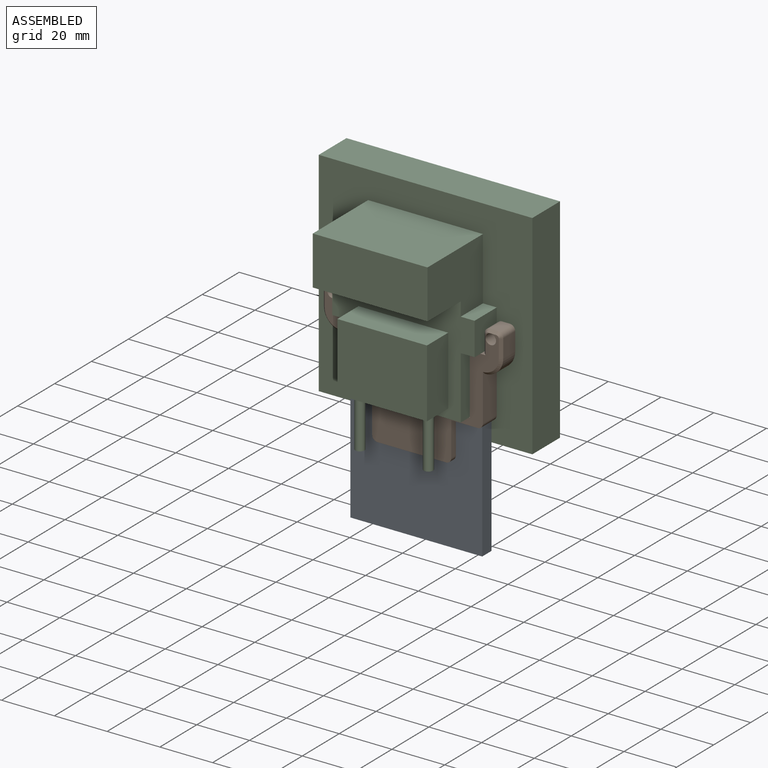
[diagram: assembled view]
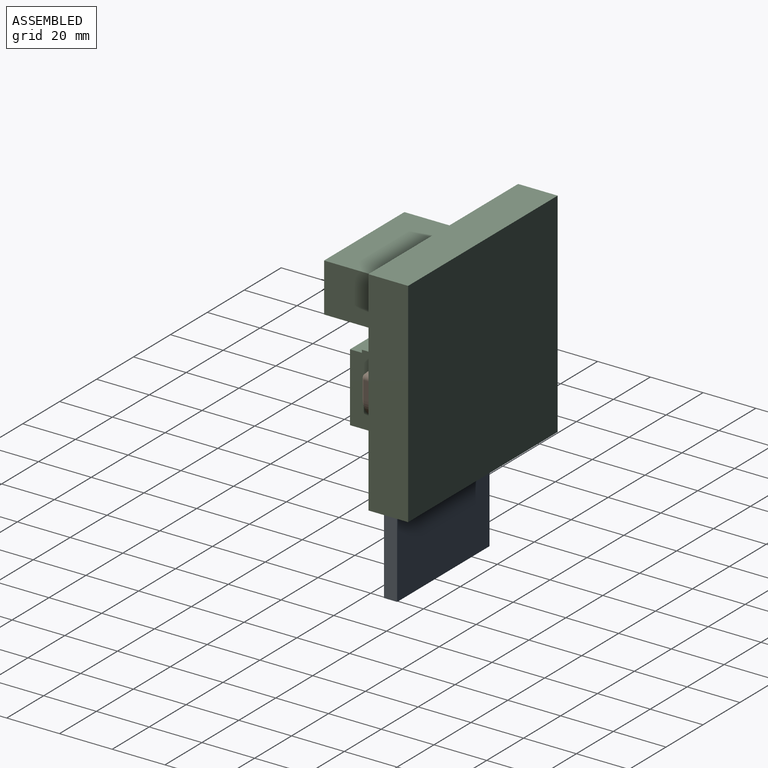
[diagram: assembled view, second angle]
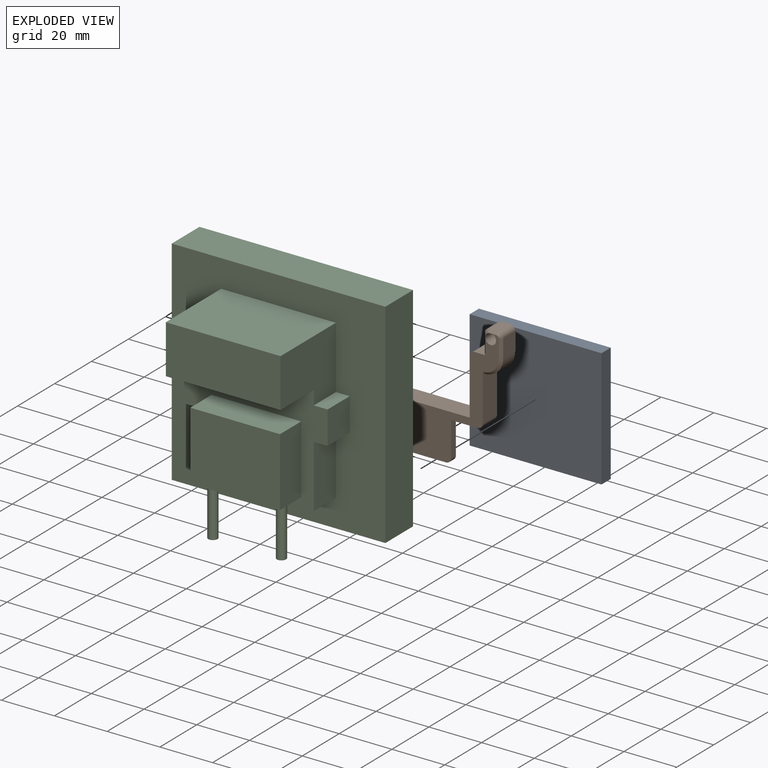
[diagram: exploded view]
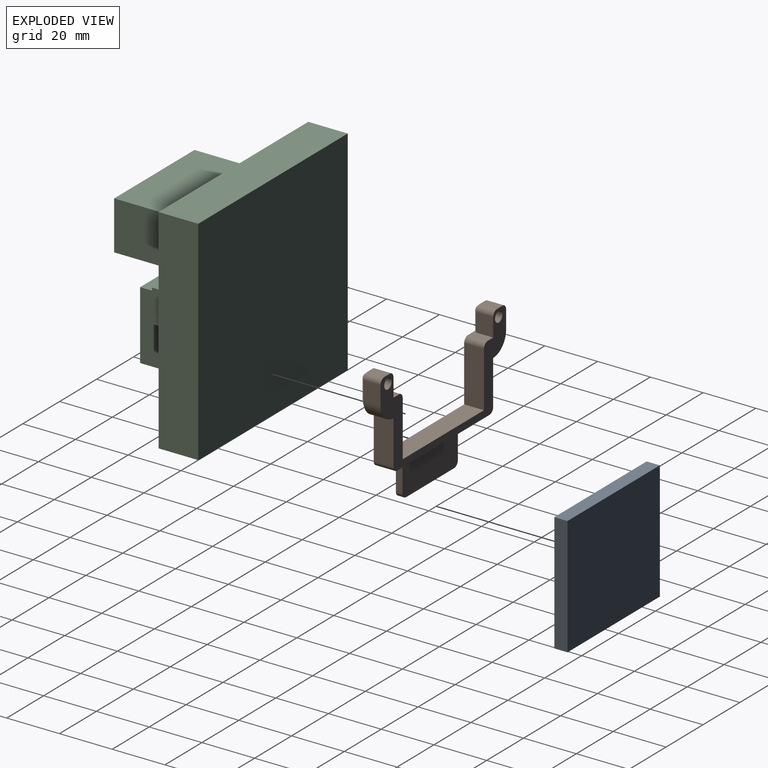
[diagram: exploded view, second angle]
ASSEMBLY  parts=3 mates=2
PART A: 6 faces, bbox 50x5x45 mm
  f0: plane 45x5mm, normal (-1,0,0), area 225mm2, adj f1,f3,f4,f5
  f1: plane 50x5mm, normal (0,0,-1), area 250mm2, adj f0,f2,f4,f5
  f2: plane 45x5mm, normal (1,0,0), area 225mm2, adj f1,f3,f4,f5
  f3: plane 50x5mm, normal (0,0,1), area 250mm2, adj f0,f2,f4,f5
  f4: plane 50x45mm, normal (0,-1,0), area 2250mm2, adj f0,f1,f2,f3
  f5: plane 50x45mm, normal (0,1,0), area 2250mm2, adj f0,f1,f2,f3
PART B: 48 faces, bbox 68x7.5x49.8 mm
  f0: plane 66x48.75mm, normal (0,1,0), area 932.6mm2, adj f2,f3,f4,f6,f7,f8,f9,f10
  f1: plane 2x2mm, normal (0,1,0), area 0.6mm2, adj f31,f36,f37,f38
  f2: plane 13x2.5mm, normal (-1,0,0), area 32.5mm2, adj f0,f6,f23,f35
  f3: plane 26x2.5mm, normal (0,0,-1), area 65mm2, adj f0,f6,f7,f35
  f4: plane 13x2.5mm, normal (1,0,0), area 32.5mm2, adj f0,f7,f23,f35
  f5: plane 68x34.75mm, normal (0,-1,0), area 549.5mm2, adj f8,f9,f10,f11,f12,f13,f14,f15
  f6: cylinder r=2mm len=2.5mm, axis (0,1,0), area 7.9mm2, adj f0,f2,f3,f35
  f7: cylinder r=2mm len=2.5mm, axis (0,1,0), area 7.9mm2, adj f0,f3,f4,f35
  f8: plane 7.5x4mm, normal (0,0,1), area 23mm2, adj f0,f5,f9,f33,f42
  f9: cylinder r=2mm len=7.5mm, axis (0,1,0), area 23.6mm2, adj f0,f5,f8,f10
  f10: plane 21x7.5mm, normal (-1,0,0), area 157.5mm2, adj f0,f5,f9,f11
  f11: plane 44x7.5mm, normal (0,0,1), area 330mm2, adj f0,f5,f10,f12
  f12: plane 21x7.5mm, normal (1,0,0), area 157.5mm2, adj f0,f5,f11,f13
  f13: cylinder r=2mm len=7.5mm, axis (0,1,0), area 23.6mm2, adj f0,f5,f12,f14
  f14: plane 7.5x4mm, normal (0,0,1), area 23mm2, adj f0,f5,f13,f15,f36
  f15: plane 7x6.5mm, normal (1,0,0), area 45.5mm2, adj f5,f14,f16,f36
  f16: cylinder r=2mm len=6.5mm, axis (0,1,0), area 20.4mm2, adj f5,f15,f17,f37
  f17: plane 6.5x3mm, normal (0,0,1), area 19.5mm2, adj f5,f16,f18,f38
  f18: cylinder r=2mm len=6.5mm, axis (0,1,0), area 20.4mm2, adj f5,f17,f19,f39
  f19: plane 7x6.5mm, normal (-1,0,0), area 45.5mm2, adj f5,f18,f20,f40
  f20: cylinder r=7mm len=7mm, axis (0,1,0), area 71.5mm2, adj f5,f19,f21,f41
  f21: plane 17.75x7.5mm, normal (-1,0,0), area 126.1mm2, adj f0,f5,f20,f22,f41
  f22: cylinder r=2mm len=7.5mm, axis (0,1,0), area 23.6mm2, adj f0,f5,f21,f23
  f23: plane 50x7.5mm, normal (0,0,-1), area 300mm2, adj f0,f2,f4,f5,f22,f24,f35
  f24: cylinder r=2mm len=7.5mm, axis (0,1,0), area 23.6mm2, adj f0,f5,f23,f25
  f25: plane 17.75x7.5mm, normal (1,0,0), area 126.1mm2, adj f0,f5,f24,f26,f47
  f26: cylinder r=7mm len=7mm, axis (0,1,0), area 71.5mm2, adj f5,f25,f27,f47
  f27: plane 7x6.5mm, normal (1,0,0), area 45.5mm2, adj f5,f26,f28,f46
  f28: cylinder r=2mm len=6.5mm, axis (0,1,0), area 20.4mm2, adj f5,f27,f29,f45
  f29: plane 6.5x3mm, normal (0,0,1), area 19.5mm2, adj f5,f28,f30,f44
  f30: cylinder r=2mm len=6.5mm, axis (0,1,0), area 20.4mm2, adj f5,f29,f33,f43
  f31: cylinder r=2mm len=7.5mm, axis (0,1,0), area 94.2mm2, adj f0,f1,f5
  f32: cylinder r=2mm len=7.5mm, axis (0,1,0), area 94.2mm2, adj f0,f5,f34
  f33: plane 7x6.5mm, normal (-1,0,0), area 45.5mm2, adj f5,f8,f30,f42
  f34: plane 2x2mm, normal (0,1,0), area 0.6mm2, adj f32,f42,f43,f44
  f35: plane 30x15mm, normal (0,-1,0), area 448.3mm2, adj f2,f3,f4,f6,f7,f23
  f36: plane 7x1mm, normal (0.71,0.71,0), area 9.9mm2, adj f0,f1,f14,f15,f37
  f37: cone r=2mm half-angle=45deg, axis (0,-1,0), area 3.3mm2, adj f1,f16,f36,f38
  f38: plane 3x1mm, normal (0,0.71,0.71), area 4.2mm2, adj f0,f1,f17,f37,f39
  f39: cone r=2mm half-angle=45deg, axis (0,-1,0), area 3.3mm2, adj f0,f18,f38,f40
  f40: plane 7x1mm, normal (-0.71,0.71,0), area 9.9mm2, adj f0,f19,f39,f41
  f41: cone r=7mm half-angle=45deg, axis (0,-1,0), area 14.4mm2, adj f0,f20,f21,f40
  f42: plane 7x1mm, normal (-0.71,0.71,0), area 9.9mm2, adj f0,f8,f33,f34,f43
  f43: cone r=2mm half-angle=45deg, axis (0,-1,0), area 3.3mm2, adj f30,f34,f42,f44
  f44: plane 3x1mm, normal (0,0.71,0.71), area 4.2mm2, adj f0,f29,f34,f43,f45
  f45: cone r=2mm half-angle=45deg, axis (0,-1,0), area 3.3mm2, adj f0,f28,f44,f46
  f46: plane 7x1mm, normal (0.71,0.71,0), area 9.9mm2, adj f0,f27,f45,f47
  f47: cone r=7mm half-angle=45deg, axis (0,-1,0), area 14.4mm2, adj f0,f25,f26,f46
PART C: 30 faces, bbox 81x45x87 mm
  f0: plane 81x81mm, normal (0,-1,0), area 3819.7mm2, adj f1,f2,f3,f4,f6,f7,f8,f9
  f1: plane 81x15mm, normal (0,0,-1), area 1215mm2, adj f0,f2,f4,f5
  f2: plane 81x15mm, normal (1,0,0), area 1215mm2, adj f0,f1,f3,f5
  f3: plane 81x15mm, normal (0,0,1), area 1215mm2, adj f0,f2,f4,f5
  f4: plane 81x15mm, normal (-1,0,0), area 1215mm2, adj f0,f1,f3,f5
  f5: plane 81x81mm, normal (0,1,0), area 6561mm2, adj f1,f2,f3,f4
  f6: plane 43.5x30mm, normal (0,0,1), area 1305mm2, adj f0,f7,f17,f20
  f7: plane 30x23.75mm, normal (-1,0,0), area 618mm2, adj f0,f6,f8,f18,f19,f20
  f8: plane 12x5.25mm, normal (0,0,1), area 63mm2, adj f0,f7,f9,f18
  f9: plane 12.5x12mm, normal (-1,0,0), area 150mm2, adj f0,f8,f10,f18
  f10: plane 12x5.25mm, normal (0,0,-1), area 63mm2, adj f0,f9,f11,f18
  f11: plane 23.75x12mm, normal (-1,0,0), area 285mm2, adj f0,f10,f12,f18
  f12: plane 43.5x12mm, normal (0,0,-1), area 522mm2, adj f0,f11,f13,f18
  f13: plane 23.75x12mm, normal (1,0,0), area 285mm2, adj f0,f12,f14,f18
  f14: plane 12x5.25mm, normal (0,0,-1), area 63mm2, adj f0,f13,f15,f18
  f15: plane 12.5x12mm, normal (1,0,0), area 150mm2, adj f0,f14,f16,f18
  f16: plane 12x5.25mm, normal (0,0,1), area 63mm2, adj f0,f15,f17,f18
  f17: plane 30x23.75mm, normal (1,0,0), area 618mm2, adj f0,f6,f16,f18,f19,f20
  f18: plane 54x41.5mm, normal (0,-1,0), area 1052.5mm2, adj f7,f8,f9,f10,f11,f12,f13,f14
  f19: plane 43.5x18mm, normal (0,0,-1), area 783mm2, adj f7,f17,f18,f20
  f20: plane 43.5x18.5mm, normal (0,-1,0), area 804.8mm2, adj f6,f7,f17,f19
  f21: plane 34x11.5mm, normal (0,0,1), area 391mm2, adj f18,f22,f24,f25
  f22: plane 26x11.5mm, normal (-1,0,0), area 299mm2, adj f18,f21,f23,f25
  f23: plane 34x11.5mm, normal (0,0,-1), area 371.8mm2, adj f18,f22,f24,f25,f26,f28
  f24: plane 26x11.5mm, normal (1,0,0), area 299mm2, adj f18,f21,f23,f25
  f25: plane 34x26mm, normal (0,-1,0), area 884mm2, adj f21,f22,f23,f24
  f26: cylinder r=1.75mm len=20mm, axis (0,0,1), area 219.9mm2, adj f23,f27
  f27: plane 3.5x3.5mm, normal (0,0,-1), area 9.6mm2, adj f26
  f28: cylinder r=1.75mm len=20mm, axis (0,0,1), area 219.9mm2, adj f23,f29
  f29: plane 3.5x3.5mm, normal (0,0,-1), area 9.6mm2, adj f28
PLACE A rot(axis=(0,0,1),180deg) t=(84.49,28.19,-93.4)mm
PLACE B rot(axis=(0,0,1),180deg) t=(-13.51,25.69,28.87)mm
PLACE C t=(99.99,48.19,-63.88)mm
MATE fastened B.f5 <-> C.f0  axis (0,1,0) through (-40.51,33.19,46.62)mm
MATE fastened A.f5 <-> B.f35  axis (0,-1,0) through (-40.51,28.19,43.87)mm
